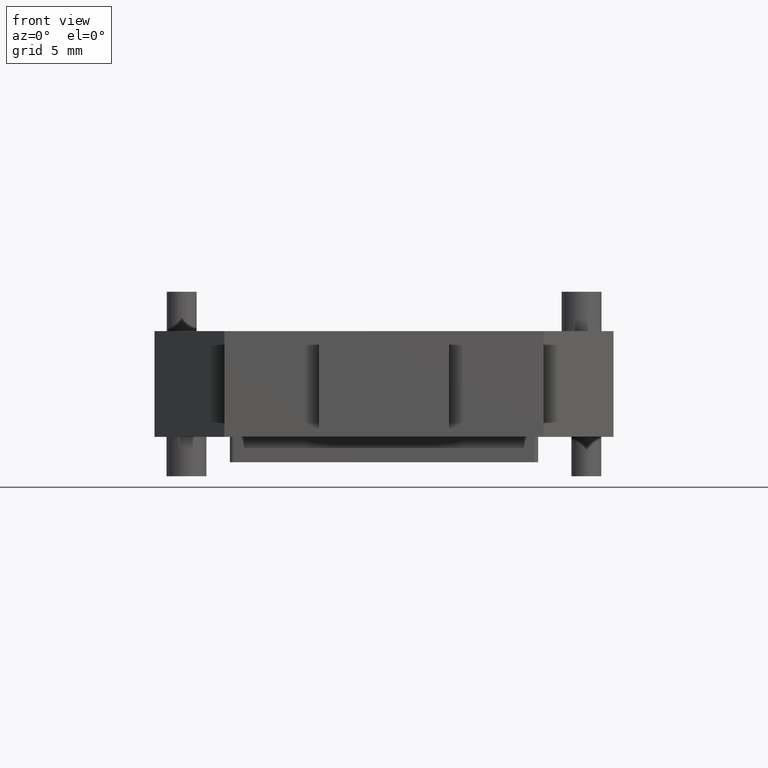
[diagram: clean part render]
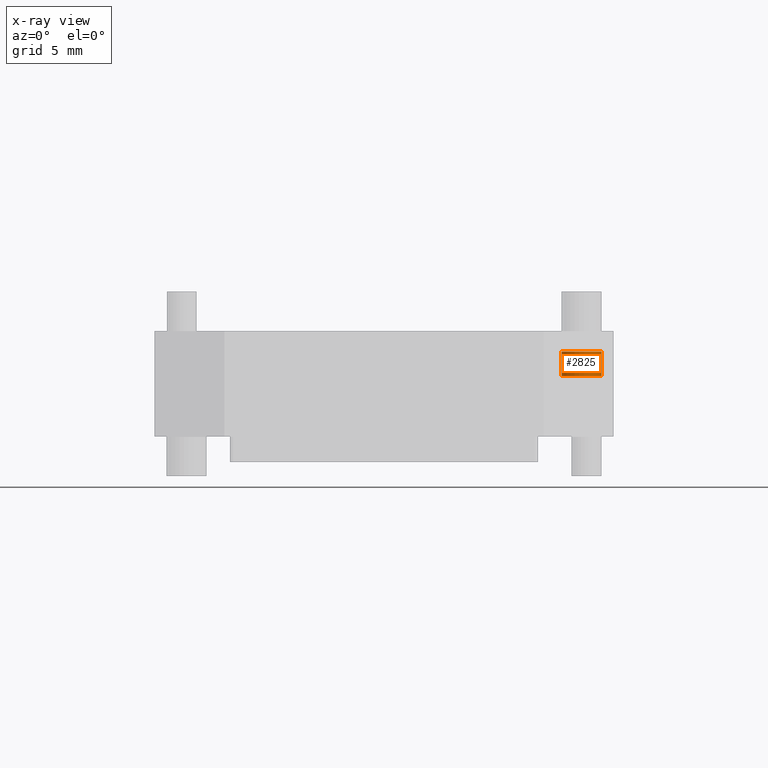
[diagram: x-ray — body ghosted, one internal face saturated and labeled with its STEP entity id]
A machine part, front view, then the same camera in x-ray: the body is ghosted and one INTERNAL B-rep face — a face not visible from any outside direction — is saturated and labeled: STEP entity #2825.
In plain terms, the highlighted cylindrical surface (edge-blend (fillet) strip) has radius 1 mm, axis along (0, 0, 1).
Its self-contained STEP definition (entity closure, byte-faithful):
#18 = CARTESIAN_POINT ( 'NONE',  ( 302.1859378434527300, 439.2072313446179800, -53.79999999999999700 ) ) ;
#59 = CARTESIAN_POINT ( 'NONE',  ( 302.1859378434527300, 439.2072313446179800, -52.56000000000000900 ) ) ;
#60 = CARTESIAN_POINT ( 'NONE',  ( 300.1859378434663800, 439.2072313446179800, -52.56000000000000900 ) ) ;
#61 = CARTESIAN_POINT ( 'NONE',  ( 300.1859378434663800, 439.2072313446179800, -53.79999999999999700 ) ) ;
#882 = EDGE_LOOP ( 'NONE', ( #1439, #1341, #1360, #1363 ) ) ;
#1341 = ORIENTED_EDGE ( 'NONE', *, *, #2884, .T. ) ;
#1360 = ORIENTED_EDGE ( 'NONE', *, *, #2872, .F. ) ;
#1363 = ORIENTED_EDGE ( 'NONE', *, *, #2867, .F. ) ;
#1439 = ORIENTED_EDGE ( 'NONE', *, *, #2859, .T. ) ;
#1971 = VERTEX_POINT ( 'NONE', #59 ) ;
#1975 = VERTEX_POINT ( 'NONE', #60 ) ;
#1978 = VERTEX_POINT ( 'NONE', #61 ) ;
#1990 = VERTEX_POINT ( 'NONE', #18 ) ;
#2825 = ADVANCED_FACE ( 'NONE', ( #4919 ), #4920, .F. ) ;
#2859 = EDGE_CURVE ( 'NONE', #1990, #1978, #4276, .T. ) ;
#2867 = EDGE_CURVE ( 'NONE', #1990, #1971, #5076, .T. ) ;
#2872 = EDGE_CURVE ( 'NONE', #1971, #1975, #4274, .T. ) ;
#2884 = EDGE_CURVE ( 'NONE', #1978, #1975, #5132, .T. ) ;
#4240 = AXIS2_PLACEMENT_3D ( 'NONE', #4925, #4940, #4922 ) ;
#4249 = VECTOR ( 'NONE', #5065, 1000.000000000000000 ) ;
#4252 = AXIS2_PLACEMENT_3D ( 'NONE', #5107, #5123, #5108 ) ;
#4271 = VECTOR ( 'NONE', #5121, 1000.000000000000000 ) ;
#4274 = CIRCLE ( 'NONE', #4252, 0.9999999999931730200 ) ;
#4276 = CIRCLE ( 'NONE', #4282, 0.9999999999931730200 ) ;
#4282 = AXIS2_PLACEMENT_3D ( 'NONE', #5058, #5089, #5077 ) ;
#4919 = FACE_OUTER_BOUND ( 'NONE', #882, .T. ) ;
#4920 = CYLINDRICAL_SURFACE ( 'NONE', #4240, 0.9999999999931730200 ) ;
#4922 = DIRECTION ( 'NONE',  ( 1.000000000000000000, 0.0000000000000000000, 0.0000000000000000000 ) ) ;
#4925 = CARTESIAN_POINT ( 'NONE',  ( 301.1859378434595600, 439.2072313446179800, -66.79999999999999700 ) ) ;
#4940 = DIRECTION ( 'NONE',  ( 0.0000000000000000000, 0.0000000000000000000, 1.000000000000000000 ) ) ;
#5058 = CARTESIAN_POINT ( 'NONE',  ( 301.1859378434595600, 439.2072313446179800, -53.79999999999999700 ) ) ;
#5062 = CARTESIAN_POINT ( 'NONE',  ( 302.1859378434527300, 439.2072313446179800, -66.79999999999999700 ) ) ;
#5065 = DIRECTION ( 'NONE',  ( 0.0000000000000000000, 0.0000000000000000000, 1.000000000000000000 ) ) ;
#5076 = LINE ( 'NONE', #5062, #4249 ) ;
#5077 = DIRECTION ( 'NONE',  ( 1.000000000000000000, 0.0000000000000000000, 0.0000000000000000000 ) ) ;
#5089 = DIRECTION ( 'NONE',  ( -0.0000000000000000000, -0.0000000000000000000, -1.000000000000000000 ) ) ;
#5107 = CARTESIAN_POINT ( 'NONE',  ( 301.1859378434595600, 439.2072313446179800, -52.56000000000000900 ) ) ;
#5108 = DIRECTION ( 'NONE',  ( 1.000000000000000000, 0.0000000000000000000, 0.0000000000000000000 ) ) ;
#5120 = CARTESIAN_POINT ( 'NONE',  ( 300.1859378434663800, 439.2072313446179800, -66.79999999999999700 ) ) ;
#5121 = DIRECTION ( 'NONE',  ( 0.0000000000000000000, 0.0000000000000000000, 1.000000000000000000 ) ) ;
#5123 = DIRECTION ( 'NONE',  ( -0.0000000000000000000, -0.0000000000000000000, -1.000000000000000000 ) ) ;
#5132 = LINE ( 'NONE', #5120, #4271 ) ;